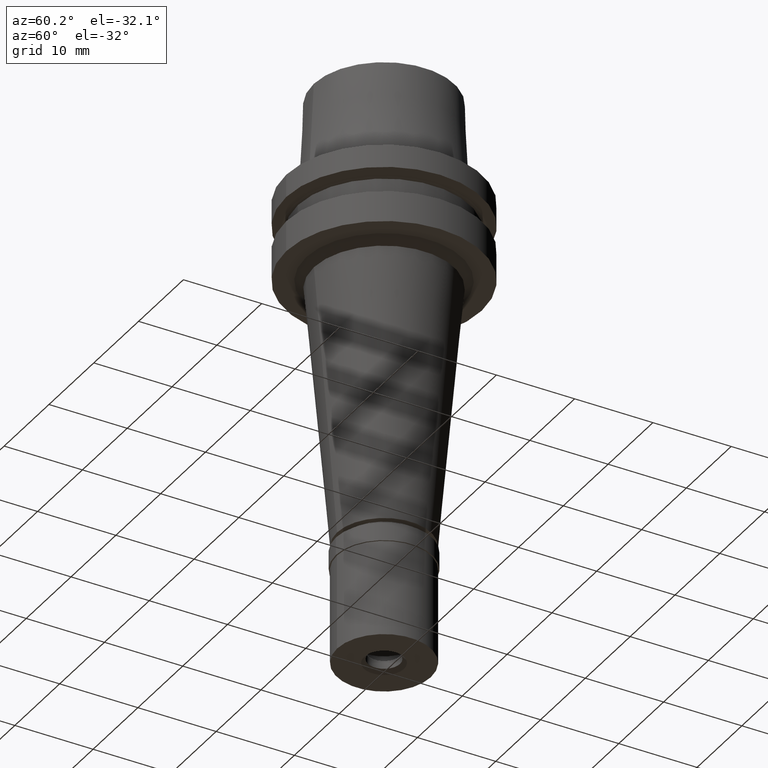
[diagram: clean part render]
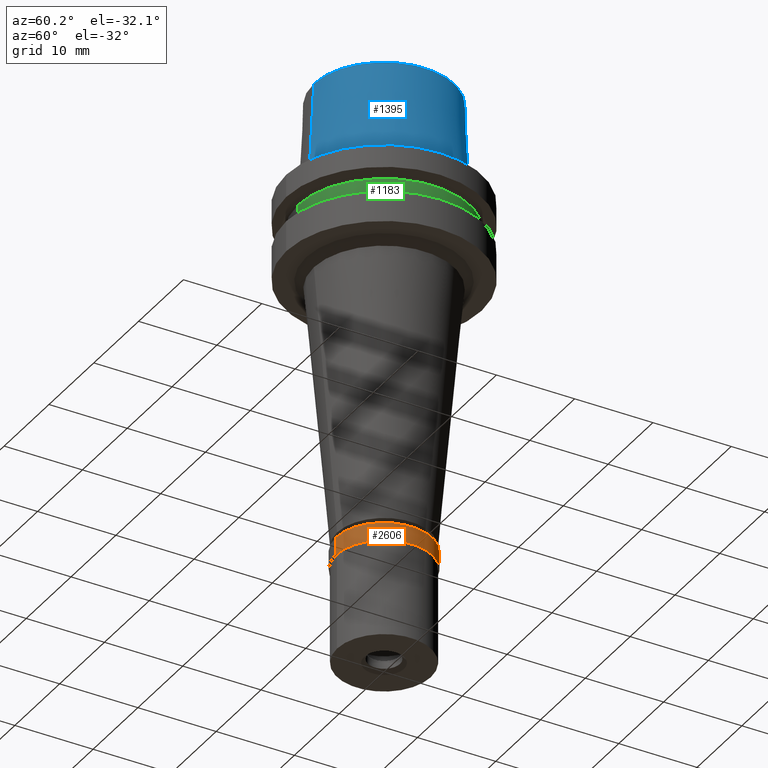
[diagram: same view with three faces highlighted in distinct colors, each labeled with its STEP entity id]
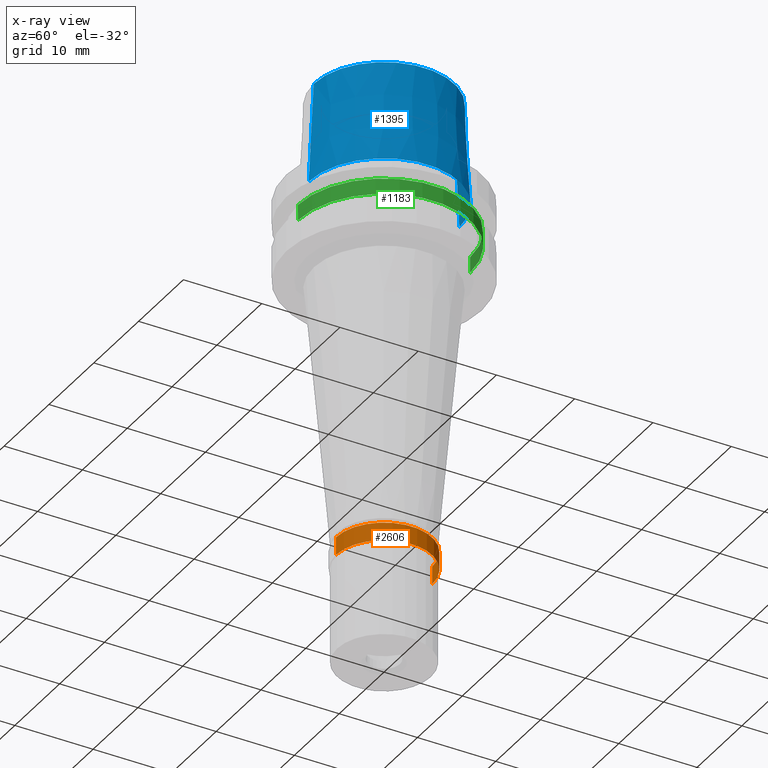
[diagram: x-ray of the same camera — body ghosted, the three highlighted faces saturated]
A machine part, auxiliary view with three faces highlighted in distinct colors.
The next image is the same camera in x-ray (body ghosted, the three faces saturated) — at least one of them is partly hidden behind the body in this view.
Their STEP definitions:

[orange] entity #2606 — the highlighted cylindrical surface (partial cylindrical patch) has radius 6.15 mm, axis along (0, 0, 1).
#102 = CARTESIAN_POINT ( 'NONE',  ( 0.0000000000000000000, 0.0000000000000000000, 1.953992523340000041E-14 ) ) ;
#116 = EDGE_CURVE ( 'NONE', #1590, #828, #192, .T. ) ;
#129 = LINE ( 'NONE', #1577, #881 ) ;
#192 = LINE ( 'NONE', #643, #965 ) ;
#279 = ORIENTED_EDGE ( 'NONE', *, *, #116, .T. ) ;
#305 = DIRECTION ( 'NONE',  ( 0.0000000000000000000, 0.0000000000000000000, -1.000000000000000000 ) ) ;
#377 = AXIS2_PLACEMENT_3D ( 'NONE', #583, #2030, #2652 ) ;
#521 = DIRECTION ( 'NONE',  ( 0.0000000000000000000, 1.000000000000000000, 0.0000000000000000000 ) ) ;
#583 = CARTESIAN_POINT ( 'NONE',  ( 0.0000000000000000000, 0.0000000000000000000, -2.299999999999999822 ) ) ;
#633 = EDGE_CURVE ( 'NONE', #1535, #1590, #926, .T. ) ;
#643 = CARTESIAN_POINT ( 'NONE',  ( 0.0000000000000000000, -6.150000000000000355, 0.0000000000000000000 ) ) ;
#649 = EDGE_CURVE ( 'NONE', #1535, #988, #129, .T. ) ;
#828 = VERTEX_POINT ( 'NONE', #1262 ) ;
#881 = VECTOR ( 'NONE', #2217, 1000.000000000000000 ) ;
#883 = EDGE_CURVE ( 'NONE', #828, #988, #2313, .T. ) ;
#926 = CIRCLE ( 'NONE', #2576, 6.150000000000000355 ) ;
#965 = VECTOR ( 'NONE', #2027, 1000.000000000000000 ) ;
#988 = VERTEX_POINT ( 'NONE', #1465 ) ;
#1262 = CARTESIAN_POINT ( 'NONE',  ( 0.0000000000000000000, -6.150000000000000355, -2.299999999999999822 ) ) ;
#1302 = CARTESIAN_POINT ( 'NONE',  ( 0.0000000000000000000, 0.0000000000000000000, -15.22500000000000142 ) ) ;
#1338 = CYLINDRICAL_SURFACE ( 'NONE', #2056, 6.150000000000000355 ) ;
#1350 = FACE_OUTER_BOUND ( 'NONE', #1575, .T. ) ;
#1382 = DIRECTION ( 'NONE',  ( 0.0000000000000000000, 1.000000000000000000, 0.0000000000000000000 ) ) ;
#1465 = CARTESIAN_POINT ( 'NONE',  ( 0.0000000000000000000, 6.150000000000000355, -2.299999999999999822 ) ) ;
#1496 = ORIENTED_EDGE ( 'NONE', *, *, #649, .F. ) ;
#1527 = DIRECTION ( 'NONE',  ( 0.0000000000000000000, 0.0000000000000000000, 1.000000000000000000 ) ) ;
#1535 = VERTEX_POINT ( 'NONE', #1892 ) ;
#1575 = EDGE_LOOP ( 'NONE', ( #2171, #279, #2121, #1496 ) ) ;
#1577 = CARTESIAN_POINT ( 'NONE',  ( 0.0000000000000000000, 6.150000000000000355, 0.0000000000000000000 ) ) ;
#1590 = VERTEX_POINT ( 'NONE', #2510 ) ;
#1892 = CARTESIAN_POINT ( 'NONE',  ( 0.0000000000000000000, 6.150000000000000355, 1.953992523340000041E-14 ) ) ;
#2027 = DIRECTION ( 'NONE',  ( 0.0000000000000000000, 0.0000000000000000000, -1.000000000000000000 ) ) ;
#2030 = DIRECTION ( 'NONE',  ( 0.0000000000000000000, 0.0000000000000000000, 1.000000000000000000 ) ) ;
#2056 = AXIS2_PLACEMENT_3D ( 'NONE', #1302, #1527, #521 ) ;
#2121 = ORIENTED_EDGE ( 'NONE', *, *, #883, .T. ) ;
#2171 = ORIENTED_EDGE ( 'NONE', *, *, #633, .T. ) ;
#2217 = DIRECTION ( 'NONE',  ( 0.0000000000000000000, 0.0000000000000000000, -1.000000000000000000 ) ) ;
#2313 = CIRCLE ( 'NONE', #377, 6.150000000000000355 ) ;
#2510 = CARTESIAN_POINT ( 'NONE',  ( 0.0000000000000000000, -6.150000000000000355, 1.953992523340000041E-14 ) ) ;
#2576 = AXIS2_PLACEMENT_3D ( 'NONE', #102, #305, #1382 ) ;
#2606 = ADVANCED_FACE ( 'NONE', ( #1350 ), #1338, .T. ) ;
#2652 = DIRECTION ( 'NONE',  ( 0.0000000000000000000, -1.000000000000000000, 0.0000000000000000000 ) ) ;

[blue] entity #1395 — the highlighted conical surface has half-angle 2.862 deg.
#90 = VECTOR ( 'NONE', #1629, 999.9999999999998863 ) ;
#92 = DIRECTION ( 'NONE',  ( 0.0000000000000000000, -0.04993752584484958956, -0.9987523434327927330 ) ) ;
#143 = VECTOR ( 'NONE', #92, 999.9999999999998863 ) ;
#151 = EDGE_CURVE ( 'NONE', #1948, #1981, #169, .T. ) ;
#169 = LINE ( 'NONE', #1843, #90 ) ;
#176 = CARTESIAN_POINT ( 'NONE',  ( 0.0000000000000000000, 9.624999771398000448, 1.332267629550000037E-13 ) ) ;
#295 = EDGE_CURVE ( 'NONE', #1948, #1089, #1101, .T. ) ;
#369 = AXIS2_PLACEMENT_3D ( 'NONE', #2349, #2085, #1068 ) ;
#374 = ORIENTED_EDGE ( 'NONE', *, *, #295, .T. ) ;
#433 = EDGE_CURVE ( 'NONE', #1089, #1574, #2413, .T. ) ;
#800 = CIRCLE ( 'NONE', #1702, 9.624999771398000448 ) ;
#1065 = CARTESIAN_POINT ( 'NONE',  ( 0.0000000000000000000, -9.624999771398000448, 1.332267629550000037E-13 ) ) ;
#1068 = DIRECTION ( 'NONE',  ( 0.0000000000000000000, 1.000000000000000000, 0.0000000000000000000 ) ) ;
#1089 = VERTEX_POINT ( 'NONE', #1908 ) ;
#1101 = CIRCLE ( 'NONE', #369, 8.975000960130000038 ) ;
#1205 = DIRECTION ( 'NONE',  ( 0.0000000000000000000, -1.000000000000000000, 0.0000000000000000000 ) ) ;
#1227 = CARTESIAN_POINT ( 'NONE',  ( 0.0000000000000000000, 8.975000960130000038, 13.00000000000000000 ) ) ;
#1352 = ORIENTED_EDGE ( 'NONE', *, *, #433, .T. ) ;
#1395 = ADVANCED_FACE ( 'NONE', ( #2471 ), #2026, .T. ) ;
#1418 = DIRECTION ( 'NONE',  ( 0.0000000000000000000, 0.0000000000000000000, -1.000000000000000000 ) ) ;
#1542 = CARTESIAN_POINT ( 'NONE',  ( 0.0000000000000000000, -8.975000960130000038, 13.00000000000000000 ) ) ;
#1544 = DIRECTION ( 'NONE',  ( 0.0000000000000000000, -1.000000000000000000, 0.0000000000000000000 ) ) ;
#1574 = VERTEX_POINT ( 'NONE', #1065 ) ;
#1629 = DIRECTION ( 'NONE',  ( 0.0000000000000000000, 0.04993752584484958956, -0.9987523434327927330 ) ) ;
#1668 = ORIENTED_EDGE ( 'NONE', *, *, #2575, .T. ) ;
#1702 = AXIS2_PLACEMENT_3D ( 'NONE', #2528, #2350, #1544 ) ;
#1843 = CARTESIAN_POINT ( 'NONE',  ( 0.0000000000000000000, 8.975000960130000038, 13.00000000000000000 ) ) ;
#1908 = CARTESIAN_POINT ( 'NONE',  ( 0.0000000000000000000, -8.975000960130000038, 13.00000000000000000 ) ) ;
#1948 = VERTEX_POINT ( 'NONE', #1227 ) ;
#1981 = VERTEX_POINT ( 'NONE', #176 ) ;
#2026 = CONICAL_SURFACE ( 'NONE', #2675, 9.300000365763999355, 0.04995830450907576964 ) ;
#2085 = DIRECTION ( 'NONE',  ( 0.0000000000000000000, 0.0000000000000000000, -1.000000000000000000 ) ) ;
#2118 = EDGE_LOOP ( 'NONE', ( #374, #1352, #1668, #2696 ) ) ;
#2349 = CARTESIAN_POINT ( 'NONE',  ( 0.0000000000000000000, 0.0000000000000000000, 13.00000000000000000 ) ) ;
#2350 = DIRECTION ( 'NONE',  ( 0.0000000000000000000, 0.0000000000000000000, 1.000000000000000000 ) ) ;
#2413 = LINE ( 'NONE', #1542, #143 ) ;
#2471 = FACE_OUTER_BOUND ( 'NONE', #2118, .T. ) ;
#2528 = CARTESIAN_POINT ( 'NONE',  ( 0.0000000000000000000, 0.0000000000000000000, 2.557953848736000191E-13 ) ) ;
#2575 = EDGE_CURVE ( 'NONE', #1574, #1981, #800, .T. ) ;
#2660 = CARTESIAN_POINT ( 'NONE',  ( 0.0000000000000000000, 0.0000000000000000000, 6.500000000000000000 ) ) ;
#2675 = AXIS2_PLACEMENT_3D ( 'NONE', #2660, #1418, #1205 ) ;
#2696 = ORIENTED_EDGE ( 'NONE', *, *, #151, .F. ) ;

[green] entity #1183 — the highlighted cylindrical surface (partial cylindrical patch) has radius 11 mm, axis along (0, 0, 1).
#83 = VERTEX_POINT ( 'NONE', #1864 ) ;
#158 = CARTESIAN_POINT ( 'NONE',  ( 0.0000000000000000000, 0.0000000000000000000, -5.500000000000000000 ) ) ;
#263 = EDGE_CURVE ( 'NONE', #2242, #1611, #1731, .T. ) ;
#328 = ORIENTED_EDGE ( 'NONE', *, *, #1315, .T. ) ;
#412 = AXIS2_PLACEMENT_3D ( 'NONE', #158, #581, #2635 ) ;
#431 = VERTEX_POINT ( 'NONE', #914 ) ;
#508 = VECTOR ( 'NONE', #782, 1000.000000000000000 ) ;
#581 = DIRECTION ( 'NONE',  ( 0.0000000000000000000, 0.0000000000000000000, 1.000000000000000000 ) ) ;
#585 = EDGE_LOOP ( 'NONE', ( #1816, #2603, #328, #2609 ) ) ;
#605 = CIRCLE ( 'NONE', #1886, 11.00000000000000000 ) ;
#731 = DIRECTION ( 'NONE',  ( 0.0000000000000000000, 1.000000000000000000, 0.0000000000000000000 ) ) ;
#782 = DIRECTION ( 'NONE',  ( 0.0000000000000000000, 0.0000000000000000000, -1.000000000000000000 ) ) ;
#872 = CARTESIAN_POINT ( 'NONE',  ( 0.0000000000000000000, 11.00000000000000000, -3.500000000000000000 ) ) ;
#914 = CARTESIAN_POINT ( 'NONE',  ( 0.0000000000000000000, -11.00000000000000000, -5.500000000000000000 ) ) ;
#975 = LINE ( 'NONE', #1600, #508 ) ;
#1183 = ADVANCED_FACE ( 'NONE', ( #2557 ), #1376, .T. ) ;
#1276 = EDGE_CURVE ( 'NONE', #83, #431, #975, .T. ) ;
#1315 = EDGE_CURVE ( 'NONE', #431, #1611, #1375, .T. ) ;
#1375 = CIRCLE ( 'NONE', #412, 11.00000000000000000 ) ;
#1376 = CYLINDRICAL_SURFACE ( 'NONE', #2316, 11.00000000000000000 ) ;
#1485 = CARTESIAN_POINT ( 'NONE',  ( 0.0000000000000000000, 11.00000000000000000, -5.500000000000000000 ) ) ;
#1551 = EDGE_CURVE ( 'NONE', #2242, #83, #605, .T. ) ;
#1600 = CARTESIAN_POINT ( 'NONE',  ( 0.0000000000000000000, -11.00000000000000000, -3.500000000000000000 ) ) ;
#1611 = VERTEX_POINT ( 'NONE', #1485 ) ;
#1701 = CARTESIAN_POINT ( 'NONE',  ( 0.0000000000000000000, 0.0000000000000000000, -3.500000000000000000 ) ) ;
#1731 = LINE ( 'NONE', #872, #2620 ) ;
#1736 = DIRECTION ( 'NONE',  ( 0.0000000000000000000, 0.0000000000000000000, 1.000000000000000000 ) ) ;
#1816 = ORIENTED_EDGE ( 'NONE', *, *, #1551, .T. ) ;
#1864 = CARTESIAN_POINT ( 'NONE',  ( 0.0000000000000000000, -11.00000000000000000, -3.500000000000000000 ) ) ;
#1886 = AXIS2_PLACEMENT_3D ( 'NONE', #1701, #2335, #2098 ) ;
#2004 = CARTESIAN_POINT ( 'NONE',  ( 0.0000000000000000000, 0.0000000000000000000, -59.45000000000000284 ) ) ;
#2098 = DIRECTION ( 'NONE',  ( 0.0000000000000000000, 1.000000000000000000, 0.0000000000000000000 ) ) ;
#2242 = VERTEX_POINT ( 'NONE', #2360 ) ;
#2316 = AXIS2_PLACEMENT_3D ( 'NONE', #2004, #1736, #731 ) ;
#2335 = DIRECTION ( 'NONE',  ( 0.0000000000000000000, 0.0000000000000000000, -1.000000000000000000 ) ) ;
#2360 = CARTESIAN_POINT ( 'NONE',  ( 0.0000000000000000000, 11.00000000000000000, -3.500000000000000000 ) ) ;
#2512 = DIRECTION ( 'NONE',  ( 0.0000000000000000000, 0.0000000000000000000, -1.000000000000000000 ) ) ;
#2557 = FACE_OUTER_BOUND ( 'NONE', #585, .T. ) ;
#2603 = ORIENTED_EDGE ( 'NONE', *, *, #1276, .T. ) ;
#2609 = ORIENTED_EDGE ( 'NONE', *, *, #263, .F. ) ;
#2620 = VECTOR ( 'NONE', #2512, 1000.000000000000000 ) ;
#2635 = DIRECTION ( 'NONE',  ( 0.0000000000000000000, -1.000000000000000000, 0.0000000000000000000 ) ) ;